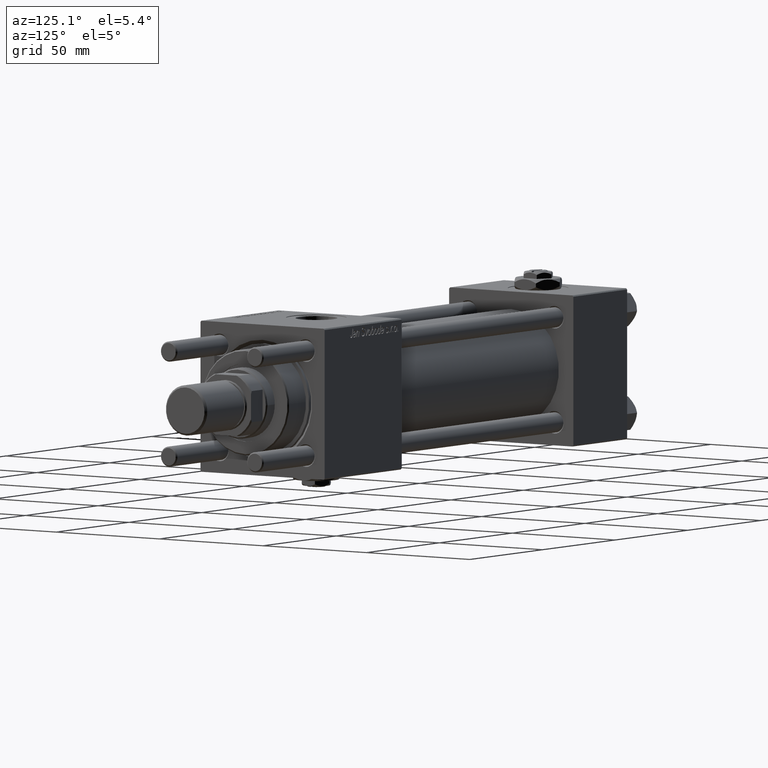
[diagram: clean part render]
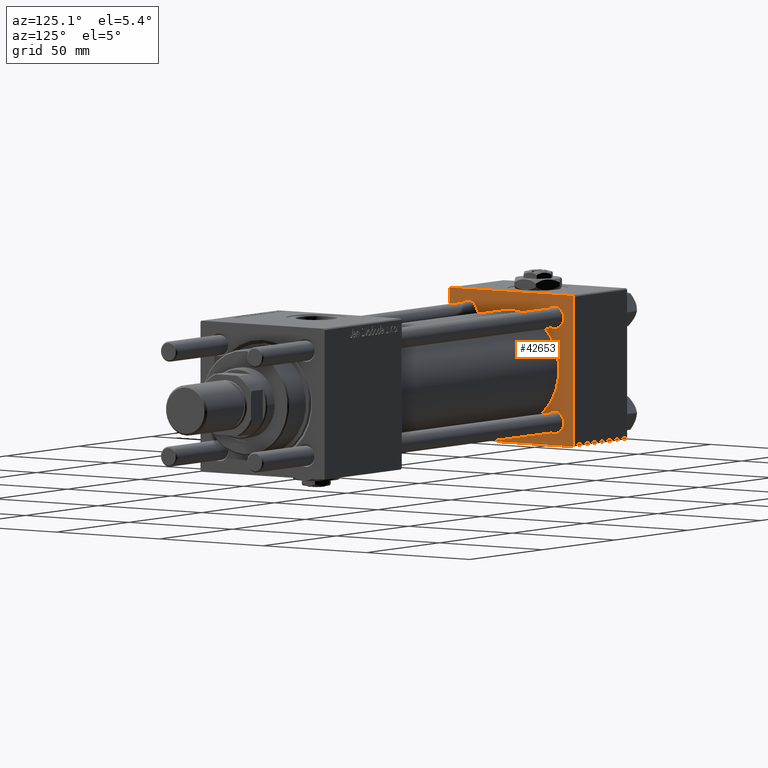
[diagram: same view with one face highlighted and labeled with its STEP entity id]
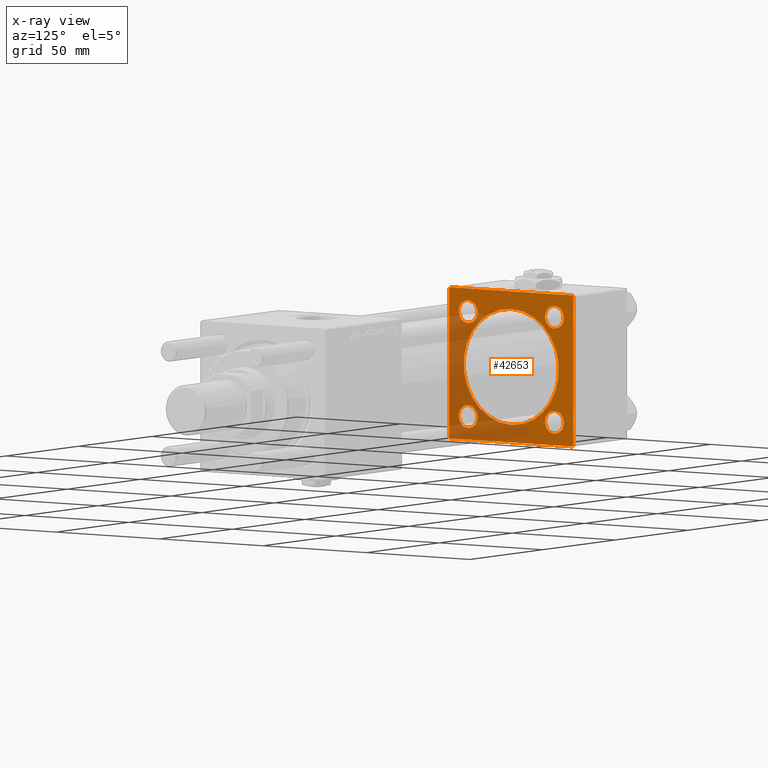
[diagram: x-ray of the same camera — body ghosted, the highlighted face saturated]
A machine part, auxiliary view. The second image highlights one B-rep face of the part: STEP entity #42653.
The next image is the same camera in x-ray: the body ghosted, the highlighted face saturated — about 38% of this face is hidden behind the body in this view.
In plain terms, the highlighted planar face has unit normal (-1, 0, 0).
Its self-contained STEP definition (entity closure, byte-faithful):
#149 = VERTEX_POINT ( 'NONE', #27076 ) ;
#1173 = ORIENTED_EDGE ( 'NONE', *, *, #4939, .F. ) ;
#1223 = CARTESIAN_POINT ( 'NONE',  ( 37.00000000000000000, -29.50000000000000000, -30.00000000000000711 ) ) ;
#1470 = DIRECTION ( 'NONE',  ( 0.000000000000000000, 0.000000000000000000, 1.000000000000000000 ) ) ;
#1533 = EDGE_LOOP ( 'NONE', ( #35388, #18724 ) ) ;
#1675 = CARTESIAN_POINT ( 'NONE',  ( 37.00000000000000000, 29.99999999999999289, -30.00000000000000000 ) ) ;
#1791 = ORIENTED_EDGE ( 'NONE', *, *, #6957, .T. ) ;
#1844 = DIRECTION ( 'NONE',  ( 0.000000000000000000, -1.000000000000000000, -1.156482317317871725E-16 ) ) ;
#2778 = ORIENTED_EDGE ( 'NONE', *, *, #19139, .T. ) ;
#2828 = CIRCLE ( 'NONE', #36366, 4.499999999999976019 ) ;
#2890 = DIRECTION ( 'NONE',  ( 0.000000000000000000, -0.7071067811865474617, 0.7071067811865474617 ) ) ;
#3089 = VECTOR ( 'NONE', #4985, 1000.000000000000114 ) ;
#3594 = AXIS2_PLACEMENT_3D ( 'NONE', #7746, #26044, #44339 ) ;
#4456 = VERTEX_POINT ( 'NONE', #49831 ) ;
#4837 = DIRECTION ( 'NONE',  ( 0.000000000000000000, 0.000000000000000000, 1.000000000000000000 ) ) ;
#4939 = EDGE_CURVE ( 'NONE', #32255, #26151, #32307, .T. ) ;
#4943 = DIRECTION ( 'NONE',  ( -1.000000000000000000, 0.000000000000000000, -0.000000000000000000 ) ) ;
#4985 = DIRECTION ( 'NONE',  ( 0.000000000000000000, 0.7071067811865474617, -0.7071067811865474617 ) ) ;
#5240 = FACE_OUTER_BOUND ( 'NONE', #40706, .T. ) ;
#5794 = VECTOR ( 'NONE', #7569, 999.9999999999998863 ) ;
#6011 = CARTESIAN_POINT ( 'NONE',  ( 37.00000000000000000, -20.84999999999999076, -25.34999999999998010 ) ) ;
#6264 = DIRECTION ( 'NONE',  ( -1.000000000000000000, 0.000000000000000000, -0.000000000000000000 ) ) ;
#6694 = VERTEX_POINT ( 'NONE', #46140 ) ;
#6957 = EDGE_CURVE ( 'NONE', #39397, #16279, #29509, .T. ) ;
#7569 = DIRECTION ( 'NONE',  ( -0.000000000000000000, 0.7071067811865574537, 0.7071067811865376918 ) ) ;
#7746 = CARTESIAN_POINT ( 'NONE',  ( 37.00000000000000711, -2.602085213965210642E-15, 0.000000000000000000 ) ) ;
#8028 = ORIENTED_EDGE ( 'NONE', *, *, #41674, .T. ) ;
#8846 = FACE_BOUND ( 'NONE', #10575, .T. ) ;
#9193 = AXIS2_PLACEMENT_3D ( 'NONE', #56524, #51430, #42408 ) ;
#9797 = CIRCLE ( 'NONE', #19402, 4.499999999999976019 ) ;
#10151 = ORIENTED_EDGE ( 'NONE', *, *, #57786, .T. ) ;
#10575 = EDGE_LOOP ( 'NONE', ( #8028, #1791 ) ) ;
#10750 = VECTOR ( 'NONE', #31261, 1000.000000000000000 ) ;
#11161 = CARTESIAN_POINT ( 'NONE',  ( 37.00000000000000000, -20.84999999999999076, 25.34999999999998010 ) ) ;
#11293 = DIRECTION ( 'NONE',  ( 0.000000000000000000, 0.000000000000000000, 1.000000000000000000 ) ) ;
#11802 = EDGE_CURVE ( 'NONE', #47997, #56740, #28579, .T. ) ;
#11888 = CARTESIAN_POINT ( 'NONE',  ( 37.00000000000000711, 2.146024240737016609E-16, -23.00000000000000000 ) ) ;
#12174 = CARTESIAN_POINT ( 'NONE',  ( 37.00000000000000000, 29.49999999999999289, 30.00000000000000000 ) ) ;
#12474 = LINE ( 'NONE', #12174, #39743 ) ;
#12958 = LINE ( 'NONE', #41445, #10750 ) ;
#13385 = VERTEX_POINT ( 'NONE', #57933 ) ;
#13667 = CARTESIAN_POINT ( 'NONE',  ( 37.00000000000000000, -29.50000000000001066, -30.00000000000000711 ) ) ;
#14557 = AXIS2_PLACEMENT_3D ( 'NONE', #19428, #52420, #11293 ) ;
#15298 = ORIENTED_EDGE ( 'NONE', *, *, #27015, .T. ) ;
#15619 = PLANE ( 'NONE',  #53319 ) ;
#16152 = DIRECTION ( 'NONE',  ( -0.000000000000000000, -0.7071067811865474617, -0.7071067811865474617 ) ) ;
#16279 = VERTEX_POINT ( 'NONE', #6011 ) ;
#16452 = CARTESIAN_POINT ( 'NONE',  ( 37.00000000000000000, -30.00000000000000000, 29.49999999999999289 ) ) ;
#16472 = VERTEX_POINT ( 'NONE', #24221 ) ;
#16531 = CIRCLE ( 'NONE', #57754, 4.499999999999976019 ) ;
#16601 = EDGE_LOOP ( 'NONE', ( #10151, #15298 ) ) ;
#16735 = EDGE_CURVE ( 'NONE', #13385, #39431, #57981, .T. ) ;
#17906 = CARTESIAN_POINT ( 'NONE',  ( 37.00000000000000000, 20.84999999999999787, 20.85000000000000142 ) ) ;
#18149 = FACE_BOUND ( 'NONE', #16601, .T. ) ;
#18724 = ORIENTED_EDGE ( 'NONE', *, *, #58862, .T. ) ;
#18741 = ORIENTED_EDGE ( 'NONE', *, *, #27249, .T. ) ;
#19139 = EDGE_CURVE ( 'NONE', #52265, #16472, #2828, .T. ) ;
#19402 = AXIS2_PLACEMENT_3D ( 'NONE', #54877, #28147, #50391 ) ;
#19428 = CARTESIAN_POINT ( 'NONE',  ( 37.00000000000000000, 20.84999999999999787, -20.85000000000000142 ) ) ;
#19849 = EDGE_CURVE ( 'NONE', #44814, #59338, #20947, .T. ) ;
#20132 = VECTOR ( 'NONE', #16152, 1000.000000000000114 ) ;
#20256 = AXIS2_PLACEMENT_3D ( 'NONE', #27653, #32446, #1470 ) ;
#20910 = AXIS2_PLACEMENT_3D ( 'NONE', #27344, #45938, #4837 ) ;
#20947 = LINE ( 'NONE', #16452, #20132 ) ;
#21691 = ORIENTED_EDGE ( 'NONE', *, *, #37443, .T. ) ;
#21780 = CARTESIAN_POINT ( 'NONE',  ( 37.00000000000000000, -20.84999999999999076, -20.85000000000000497 ) ) ;
#22658 = FACE_BOUND ( 'NONE', #1533, .T. ) ;
#22988 = EDGE_LOOP ( 'NONE', ( #1173, #27987 ) ) ;
#23523 = CARTESIAN_POINT ( 'NONE',  ( 37.00000000000000000, 0.000000000000000000, 0.000000000000000000 ) ) ;
#24027 = DIRECTION ( 'NONE',  ( -1.000000000000000000, 0.000000000000000000, -0.000000000000000000 ) ) ;
#24221 = CARTESIAN_POINT ( 'NONE',  ( 37.00000000000000000, 20.84999999999999787, 16.35000000000002274 ) ) ;
#24297 = VERTEX_POINT ( 'NONE', #32874 ) ;
#24662 = EDGE_CURVE ( 'NONE', #26151, #32255, #46132, .T. ) ;
#25864 = CARTESIAN_POINT ( 'NONE',  ( 37.00000000000000000, 29.99999999999999289, -29.50000000000000000 ) ) ;
#26044 = DIRECTION ( 'NONE',  ( 1.000000000000000000, -0.000000000000000000, 0.000000000000000000 ) ) ;
#26151 = VERTEX_POINT ( 'NONE', #11888 ) ;
#27015 = EDGE_CURVE ( 'NONE', #4456, #149, #9797, .T. ) ;
#27076 = CARTESIAN_POINT ( 'NONE',  ( 37.00000000000000000, 20.84999999999999787, -25.34999999999997655 ) ) ;
#27249 = EDGE_CURVE ( 'NONE', #24297, #40243, #55100, .T. ) ;
#27344 = CARTESIAN_POINT ( 'NONE',  ( 37.00000000000000000, -20.84999999999999076, 20.85000000000000497 ) ) ;
#27357 = VERTEX_POINT ( 'NONE', #35225 ) ;
#27653 = CARTESIAN_POINT ( 'NONE',  ( 37.00000000000000711, -2.602085213965210642E-15, 0.000000000000000000 ) ) ;
#27875 = ORIENTED_EDGE ( 'NONE', *, *, #16735, .T. ) ;
#27987 = ORIENTED_EDGE ( 'NONE', *, *, #24662, .F. ) ;
#28147 = DIRECTION ( 'NONE',  ( -1.000000000000000000, 0.000000000000000000, -0.000000000000000000 ) ) ;
#28218 = AXIS2_PLACEMENT_3D ( 'NONE', #17906, #54806, #41285 ) ;
#28579 = CIRCLE ( 'NONE', #20910, 4.499999999999976019 ) ;
#29509 = CIRCLE ( 'NONE', #39114, 4.499999999999976019 ) ;
#30585 = ORIENTED_EDGE ( 'NONE', *, *, #49756, .T. ) ;
#30863 = ORIENTED_EDGE ( 'NONE', *, *, #19849, .T. ) ;
#31261 = DIRECTION ( 'NONE',  ( 0.000000000000000000, 0.000000000000000000, -1.000000000000000000 ) ) ;
#32255 = VERTEX_POINT ( 'NONE', #33043 ) ;
#32307 = CIRCLE ( 'NONE', #3594, 23.00000000000000000 ) ;
#32446 = DIRECTION ( 'NONE',  ( 1.000000000000000000, -0.000000000000000000, 0.000000000000000000 ) ) ;
#32663 = ORIENTED_EDGE ( 'NONE', *, *, #34458, .T. ) ;
#32769 = CIRCLE ( 'NONE', #14557, 4.499999999999976019 ) ;
#32874 = CARTESIAN_POINT ( 'NONE',  ( 37.00000000000000000, -30.00000000000000000, -29.50000000000001776 ) ) ;
#33043 = CARTESIAN_POINT ( 'NONE',  ( 37.00000000000000711, -2.602085213965210642E-15, 23.00000000000000000 ) ) ;
#33318 = EDGE_CURVE ( 'NONE', #27357, #6694, #12474, .T. ) ;
#33750 = LINE ( 'NONE', #1675, #37613 ) ;
#34066 = CIRCLE ( 'NONE', #9193, 4.499999999999976019 ) ;
#34458 = EDGE_CURVE ( 'NONE', #59338, #24297, #48149, .T. ) ;
#35225 = CARTESIAN_POINT ( 'NONE',  ( 37.00000000000000000, 29.99999999999999289, 29.50000000000000000 ) ) ;
#35388 = ORIENTED_EDGE ( 'NONE', *, *, #11802, .T. ) ;
#35549 = CARTESIAN_POINT ( 'NONE',  ( 37.00000000000000000, -30.00000000000000000, 29.49999999999999289 ) ) ;
#35661 = CARTESIAN_POINT ( 'NONE',  ( 37.00000000000000000, 29.99999999999999289, -29.50000000000000000 ) ) ;
#36366 = AXIS2_PLACEMENT_3D ( 'NONE', #46192, #6264, #38359 ) ;
#36442 = FACE_BOUND ( 'NONE', #22988, .T. ) ;
#37379 = DIRECTION ( 'NONE',  ( 0.000000000000000000, -1.000000000000000000, -1.156482317317871725E-16 ) ) ;
#37443 = EDGE_CURVE ( 'NONE', #16472, #52265, #38744, .T. ) ;
#37613 = VECTOR ( 'NONE', #37379, 1000.000000000000000 ) ;
#37664 = ORIENTED_EDGE ( 'NONE', *, *, #57388, .F. ) ;
#38359 = DIRECTION ( 'NONE',  ( 0.000000000000000000, 0.000000000000000000, 1.000000000000000000 ) ) ;
#38744 = CIRCLE ( 'NONE', #28218, 4.499999999999976019 ) ;
#39114 = AXIS2_PLACEMENT_3D ( 'NONE', #21780, #40379, #43985 ) ;
#39241 = VECTOR ( 'NONE', #1844, 1000.000000000000000 ) ;
#39397 = VERTEX_POINT ( 'NONE', #47695 ) ;
#39431 = VERTEX_POINT ( 'NONE', #35661 ) ;
#39743 = VECTOR ( 'NONE', #2890, 1000.000000000000114 ) ;
#40243 = VERTEX_POINT ( 'NONE', #1223 ) ;
#40379 = DIRECTION ( 'NONE',  ( -1.000000000000000000, 0.000000000000000000, -0.000000000000000000 ) ) ;
#40706 = EDGE_LOOP ( 'NONE', ( #58265, #27875, #37664, #50249, #30585, #30863, #32663, #18741 ) ) ;
#41285 = DIRECTION ( 'NONE',  ( 0.000000000000000000, 0.000000000000000000, 1.000000000000000000 ) ) ;
#41445 = CARTESIAN_POINT ( 'NONE',  ( 37.00000000000000000, 29.99999999999999289, 30.00000000000000000 ) ) ;
#41674 = EDGE_CURVE ( 'NONE', #16279, #39397, #34066, .T. ) ;
#42408 = DIRECTION ( 'NONE',  ( 0.000000000000000000, 0.000000000000000000, 1.000000000000000000 ) ) ;
#42653 = ADVANCED_FACE ( 'NONE', ( #8846, #18149, #22658, #59278, #36442, #5240 ), #15619, .F. ) ;
#42925 = LINE ( 'NONE', #53135, #39241 ) ;
#43985 = DIRECTION ( 'NONE',  ( 0.000000000000000000, 0.000000000000000000, 1.000000000000000000 ) ) ;
#44339 = DIRECTION ( 'NONE',  ( 0.000000000000000000, 0.000000000000000000, 1.000000000000000000 ) ) ;
#44814 = VERTEX_POINT ( 'NONE', #54080 ) ;
#45938 = DIRECTION ( 'NONE',  ( -1.000000000000000000, 0.000000000000000000, -0.000000000000000000 ) ) ;
#46042 = DIRECTION ( 'NONE',  ( -0.000000000000000000, 0.000000000000000000, 1.000000000000000000 ) ) ;
#46132 = CIRCLE ( 'NONE', #20256, 23.00000000000000000 ) ;
#46140 = CARTESIAN_POINT ( 'NONE',  ( 37.00000000000000000, 29.49999999999999289, 30.00000000000000000 ) ) ;
#46192 = CARTESIAN_POINT ( 'NONE',  ( 37.00000000000000000, 20.84999999999999787, 20.85000000000000142 ) ) ;
#47695 = CARTESIAN_POINT ( 'NONE',  ( 37.00000000000000000, -20.84999999999999076, -16.35000000000002629 ) ) ;
#47997 = VERTEX_POINT ( 'NONE', #54277 ) ;
#48149 = LINE ( 'NONE', #48451, #49322 ) ;
#48451 = CARTESIAN_POINT ( 'NONE',  ( 37.00000000000000000, -30.00000000000000000, 29.99999999999999289 ) ) ;
#49322 = VECTOR ( 'NONE', #57737, 1000.000000000000000 ) ;
#49756 = EDGE_CURVE ( 'NONE', #6694, #44814, #42925, .T. ) ;
#49831 = CARTESIAN_POINT ( 'NONE',  ( 37.00000000000000000, 20.84999999999999787, -16.35000000000002274 ) ) ;
#50249 = ORIENTED_EDGE ( 'NONE', *, *, #33318, .T. ) ;
#50391 = DIRECTION ( 'NONE',  ( 0.000000000000000000, 0.000000000000000000, 1.000000000000000000 ) ) ;
#51061 = DIRECTION ( 'NONE',  ( 0.000000000000000000, 0.000000000000000000, 1.000000000000000000 ) ) ;
#51176 = CARTESIAN_POINT ( 'NONE',  ( 37.00000000000000000, 20.84999999999999787, 25.34999999999997655 ) ) ;
#51430 = DIRECTION ( 'NONE',  ( -1.000000000000000000, 0.000000000000000000, -0.000000000000000000 ) ) ;
#52265 = VERTEX_POINT ( 'NONE', #51176 ) ;
#52420 = DIRECTION ( 'NONE',  ( -1.000000000000000000, 0.000000000000000000, -0.000000000000000000 ) ) ;
#53135 = CARTESIAN_POINT ( 'NONE',  ( 37.00000000000000000, 29.99999999999999289, 30.00000000000000000 ) ) ;
#53319 = AXIS2_PLACEMENT_3D ( 'NONE', #23523, #4943, #46042 ) ;
#54080 = CARTESIAN_POINT ( 'NONE',  ( 37.00000000000000000, -29.49999999999998579, 29.99999999999999289 ) ) ;
#54277 = CARTESIAN_POINT ( 'NONE',  ( 37.00000000000000000, -20.84999999999999076, 16.35000000000002629 ) ) ;
#54806 = DIRECTION ( 'NONE',  ( -1.000000000000000000, 0.000000000000000000, -0.000000000000000000 ) ) ;
#54877 = CARTESIAN_POINT ( 'NONE',  ( 37.00000000000000000, 20.84999999999999787, -20.85000000000000142 ) ) ;
#54972 = CARTESIAN_POINT ( 'NONE',  ( 37.00000000000000000, -20.84999999999999076, 20.85000000000000497 ) ) ;
#55100 = LINE ( 'NONE', #13667, #3089 ) ;
#55723 = EDGE_LOOP ( 'NONE', ( #21691, #2778 ) ) ;
#56524 = CARTESIAN_POINT ( 'NONE',  ( 37.00000000000000000, -20.84999999999999076, -20.85000000000000497 ) ) ;
#56740 = VERTEX_POINT ( 'NONE', #11161 ) ;
#57388 = EDGE_CURVE ( 'NONE', #27357, #39431, #12958, .T. ) ;
#57737 = DIRECTION ( 'NONE',  ( 0.000000000000000000, 0.000000000000000000, -1.000000000000000000 ) ) ;
#57754 = AXIS2_PLACEMENT_3D ( 'NONE', #54972, #24027, #51061 ) ;
#57786 = EDGE_CURVE ( 'NONE', #149, #4456, #32769, .T. ) ;
#57933 = CARTESIAN_POINT ( 'NONE',  ( 37.00000000000000000, 29.49999999999997868, -30.00000000000000000 ) ) ;
#57981 = LINE ( 'NONE', #25864, #5794 ) ;
#58265 = ORIENTED_EDGE ( 'NONE', *, *, #58351, .F. ) ;
#58351 = EDGE_CURVE ( 'NONE', #13385, #40243, #33750, .T. ) ;
#58862 = EDGE_CURVE ( 'NONE', #56740, #47997, #16531, .T. ) ;
#59278 = FACE_BOUND ( 'NONE', #55723, .T. ) ;
#59338 = VERTEX_POINT ( 'NONE', #35549 ) ;